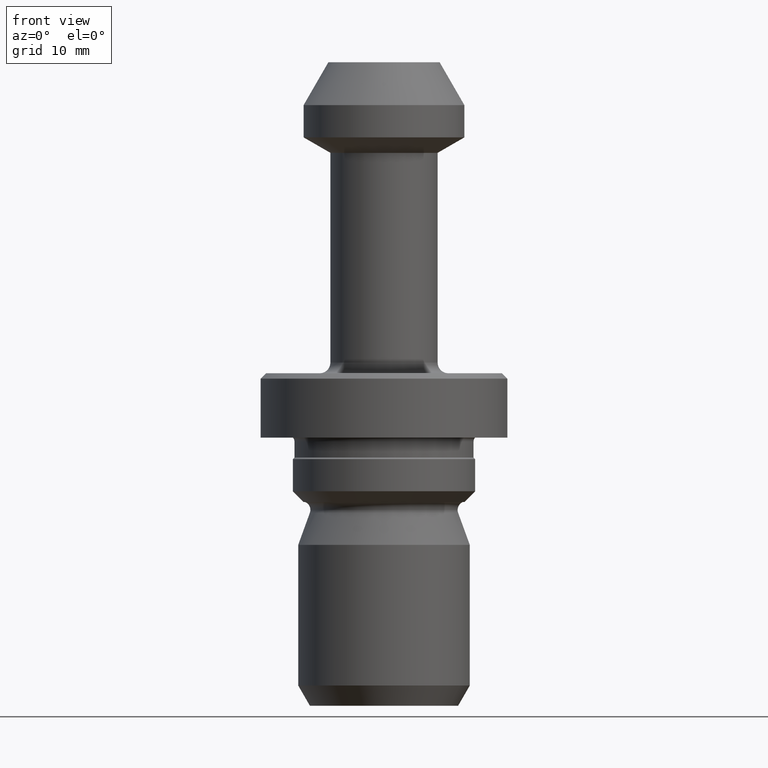
[diagram: clean part render]
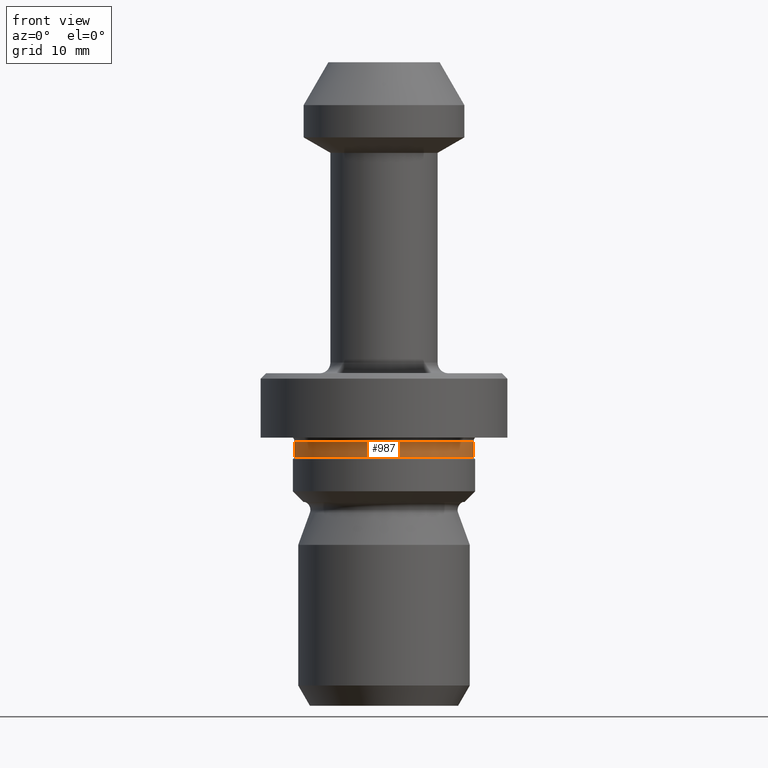
[diagram: same view with one face highlighted and labeled with its STEP entity id]
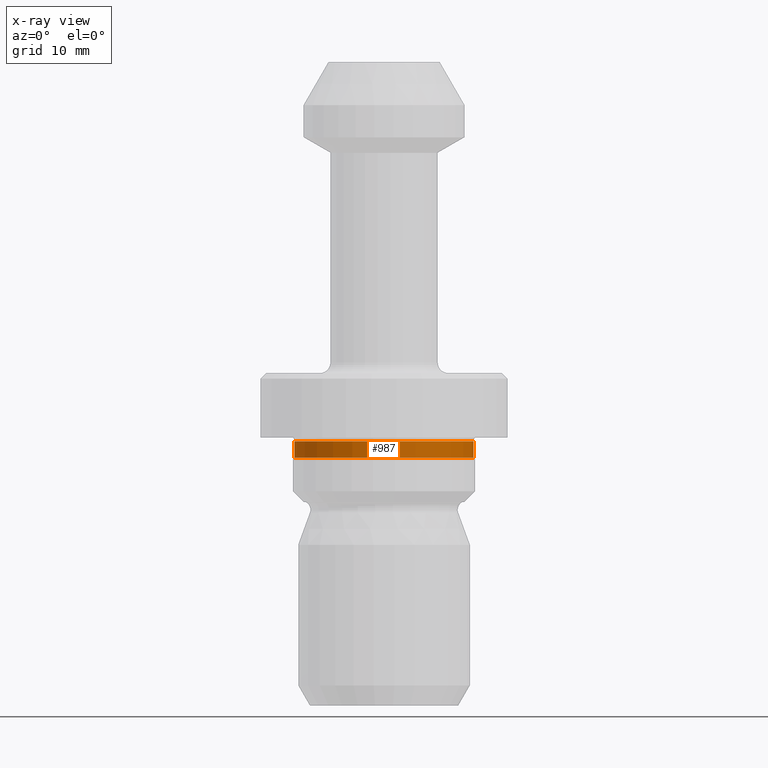
[diagram: x-ray of the same camera — body ghosted, the highlighted face saturated]
A machine part, front view. The second image highlights one B-rep face of the part: STEP entity #987.
The next image is the same camera in x-ray: the body ghosted, the highlighted face saturated — about 0% of this face is hidden behind the body in this view.
In plain terms, the highlighted cylindrical surface (partial cylindrical patch) has radius 8.35 mm, axis along (-0, -0, 1).
Its self-contained STEP definition (entity closure, byte-faithful):
#40 = CIRCLE ( 'NONE', #416, 8.349999999998900100 ) ;
#60 = DIRECTION ( 'NONE',  ( -0.0000000000000000000, -0.0000000000000000000, 1.000000000000000000 ) ) ;
#92 = DIRECTION ( 'NONE',  ( -0.0000000000000000000, -0.0000000000000000000, 1.000000000000000000 ) ) ;
#100 = VECTOR ( 'NONE', #952, 1000.000000000000000 ) ;
#110 = LINE ( 'NONE', #329, #552 ) ;
#120 = LINE ( 'NONE', #177, #100 ) ;
#177 = CARTESIAN_POINT ( 'NONE',  ( 8.349999999998905400, 0.0000000000000000000, 0.0000000000000000000 ) ) ;
#226 = EDGE_LOOP ( 'NONE', ( #735, #877, #362, #841 ) ) ;
#303 = CYLINDRICAL_SURFACE ( 'NONE', #531, 8.349999999998905400 ) ;
#326 = EDGE_CURVE ( 'NONE', #782, #426, #485, .T. ) ;
#329 = CARTESIAN_POINT ( 'NONE',  ( -8.349999999998905400, 1.022580077287905800E-015, 0.0000000000000000000 ) ) ;
#362 = ORIENTED_EDGE ( 'NONE', *, *, #660, .T. ) ;
#393 = VERTEX_POINT ( 'NONE', #1019 ) ;
#416 = AXIS2_PLACEMENT_3D ( 'NONE', #795, #92, #609 ) ;
#426 = VERTEX_POINT ( 'NONE', #901 ) ;
#485 = CIRCLE ( 'NONE', #836, 8.349999999998910700 ) ;
#531 = AXIS2_PLACEMENT_3D ( 'NONE', #847, #753, #652 ) ;
#552 = VECTOR ( 'NONE', #60, 1000.000000000000000 ) ;
#609 = DIRECTION ( 'NONE',  ( 1.000000000000000000, 0.0000000000000000000, 0.0000000000000000000 ) ) ;
#651 = DIRECTION ( 'NONE',  ( -0.0000000000000000000, -0.0000000000000000000, 1.000000000000000000 ) ) ;
#652 = DIRECTION ( 'NONE',  ( 1.000000000000000000, 0.0000000000000000000, 0.0000000000000000000 ) ) ;
#660 = EDGE_CURVE ( 'NONE', #426, #393, #120, .T. ) ;
#661 = CARTESIAN_POINT ( 'NONE',  ( -8.349999999998900100, 1.022580077287905600E-015, -35.34883009897341600 ) ) ;
#671 = DIRECTION ( 'NONE',  ( 1.000000000000000000, 0.0000000000000000000, 0.0000000000000000000 ) ) ;
#735 = ORIENTED_EDGE ( 'NONE', *, *, #905, .F. ) ;
#753 = DIRECTION ( 'NONE',  ( -0.0000000000000000000, -0.0000000000000000000, 1.000000000000000000 ) ) ;
#782 = VERTEX_POINT ( 'NONE', #993 ) ;
#795 = CARTESIAN_POINT ( 'NONE',  ( 0.0000000000000000000, 0.0000000000000000000, -35.34883009897341600 ) ) ;
#836 = AXIS2_PLACEMENT_3D ( 'NONE', #1097, #651, #671 ) ;
#841 = ORIENTED_EDGE ( 'NONE', *, *, #1054, .F. ) ;
#847 = CARTESIAN_POINT ( 'NONE',  ( 0.0000000000000000000, 0.0000000000000000000, 0.0000000000000000000 ) ) ;
#877 = ORIENTED_EDGE ( 'NONE', *, *, #326, .T. ) ;
#901 = CARTESIAN_POINT ( 'NONE',  ( 8.349999999998910700, 1.031764928281510800E-015, -36.85000000000003000 ) ) ;
#905 = EDGE_CURVE ( 'NONE', #782, #926, #110, .T. ) ;
#926 = VERTEX_POINT ( 'NONE', #661 ) ;
#952 = DIRECTION ( 'NONE',  ( -0.0000000000000000000, -0.0000000000000000000, 1.000000000000000000 ) ) ;
#987 = ADVANCED_FACE ( 'NONE', ( #990 ), #303, .T. ) ;
#990 = FACE_OUTER_BOUND ( 'NONE', #226, .T. ) ;
#993 = CARTESIAN_POINT ( 'NONE',  ( -8.349999999998910700, 0.0000000000000000000, -36.85000000000003000 ) ) ;
#1019 = CARTESIAN_POINT ( 'NONE',  ( 8.349999999998900100, 0.0000000000000000000, -35.34883009897341600 ) ) ;
#1054 = EDGE_CURVE ( 'NONE', #926, #393, #40, .T. ) ;
#1097 = CARTESIAN_POINT ( 'NONE',  ( 0.0000000000000000000, 0.0000000000000000000, -36.85000000000003000 ) ) ;